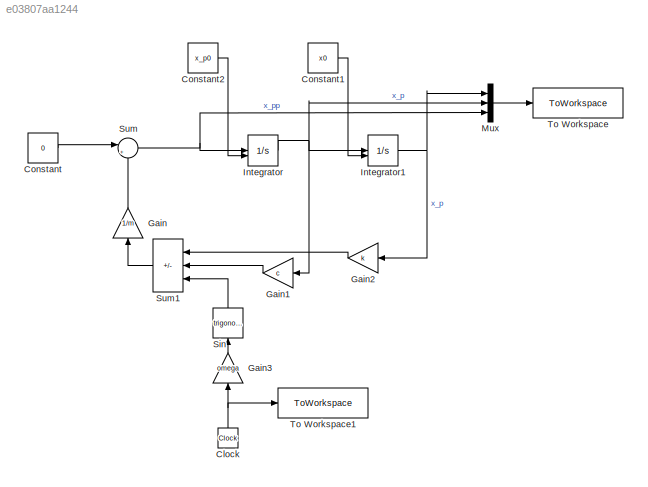
MODEL slx_e03807aa1244
KIND model
CONFIG AbsTol = auto
CONFIG EnableMultiTasking = off
CONFIG FixedStep = auto
CONFIG MaxStep = auto
CONFIG MinStep = auto
CONFIG RelTol = 1e-3
CONFIG SampleTimeConstraint = Unconstrained
CONFIG SolverName = VariableStepAuto
CONFIG StartTime = 0.0
CONFIG StopTime = stoptime
BLOCK [Clock] Clock
  Decimation = 1
  NameLocation = right
BLOCK [Constant] Constant
  Value = 0
BLOCK [Constant] Constant1
  Value = x0
BLOCK [Constant] Constant2
  Value = x_p0
BLOCK [Gain] Gain
  Gain = 1/m
  NameLocation = right
BLOCK [Gain] Gain1
  Gain = c
  NameLocation = top
BLOCK [Gain] Gain2
  Gain = k
  NameLocation = top
BLOCK [Gain] Gain3
  Gain = omega
  NameLocation = right
BLOCK [Integrator] Integrator
  InitialConditionSource = external
BLOCK [Integrator] Integrator1
  InitialConditionSource = external
BLOCK [Mux] Mux
  DisplayOption = bar
  Inputs = 3
BLOCK [Trigonometry] Sin
  NameLocation = right
BLOCK [Sum] Sum
  Inputs = |+-
BLOCK [Sum] Sum1
  IconShape = rectangular
  Inputs = |++-
  NameLocation = top
BLOCK [ToWorkspace] To Workspace
  FixptAsFi = on
  MaxDataPoints = inf
  SampleTime = -1
  VariableName = x
BLOCK [ToWorkspace] To Workspace1
  FixptAsFi = on
  MaxDataPoints = inf
  SampleTime = -1
  VariableName = time
NET Clock:1 -> Gain3:1, To Workspace1:1
LINE Constant1:1 -> Integrator1:2
LINE Constant2:1 -> Integrator:2
LINE Constant:1 -> Sum:1
LINE Gain1:1 -> Sum1:2
LINE Gain2:1 -> Sum1:1
LINE Gain3:1 -> Sin:1
LINE Gain:1 -> Sum:2
NET Integrator1:1 -> Gain2:1, Mux:1
NET Integrator:1 -> Gain1:1, Integrator1:1, Mux:2
LINE Mux:1 -> To Workspace:1
LINE Sin:1 -> Sum1:3
LINE Sum1:1 -> Gain:1
NET Sum:1 -> Integrator:1, Mux:3
note: NET lines group one-source signal fan-out (src -> all destinations, sorted); 1:1 wires keep LINE
